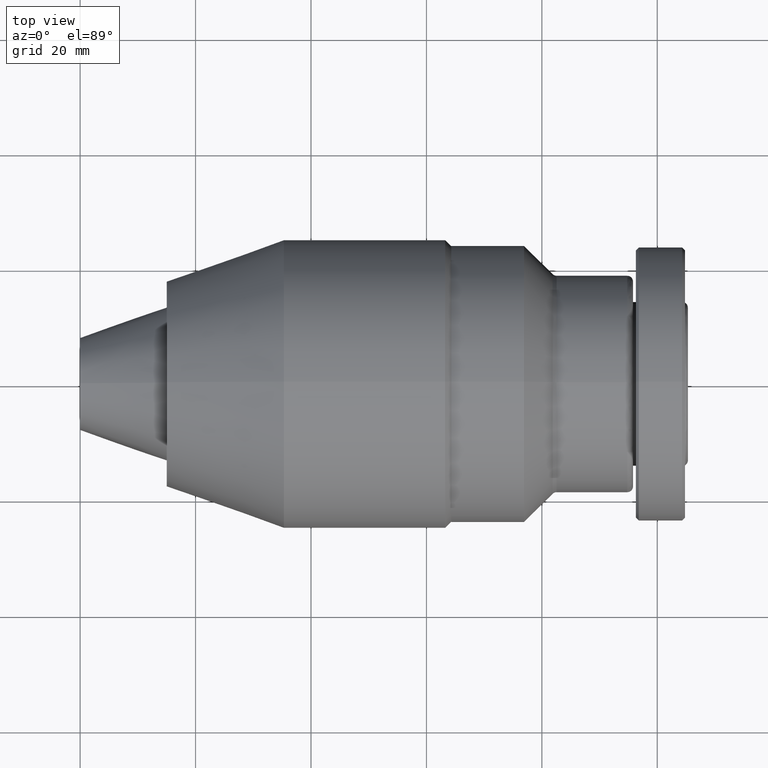
[diagram: clean part render]
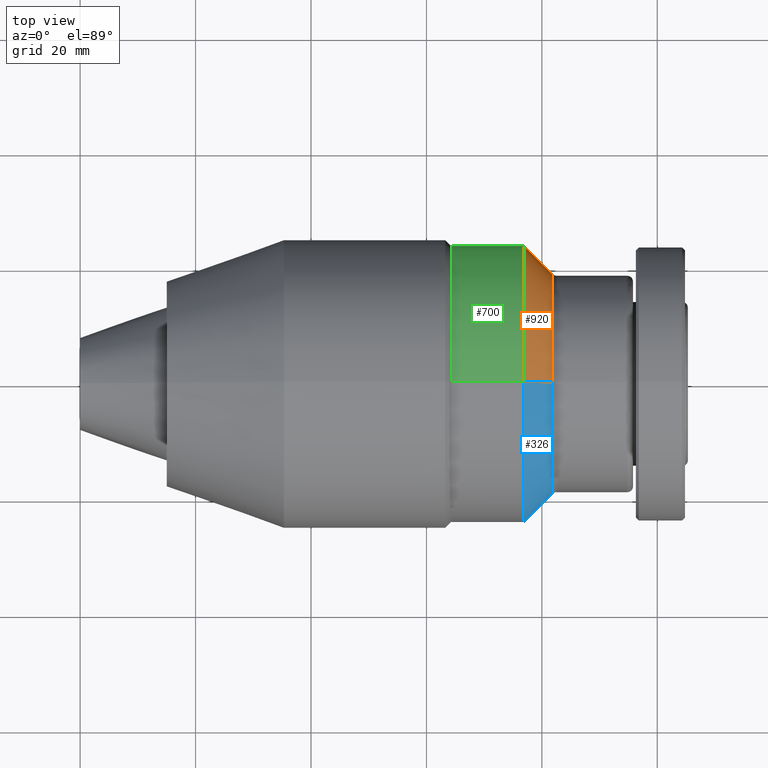
[diagram: same view with three faces highlighted in distinct colors, each labeled with its STEP entity id]
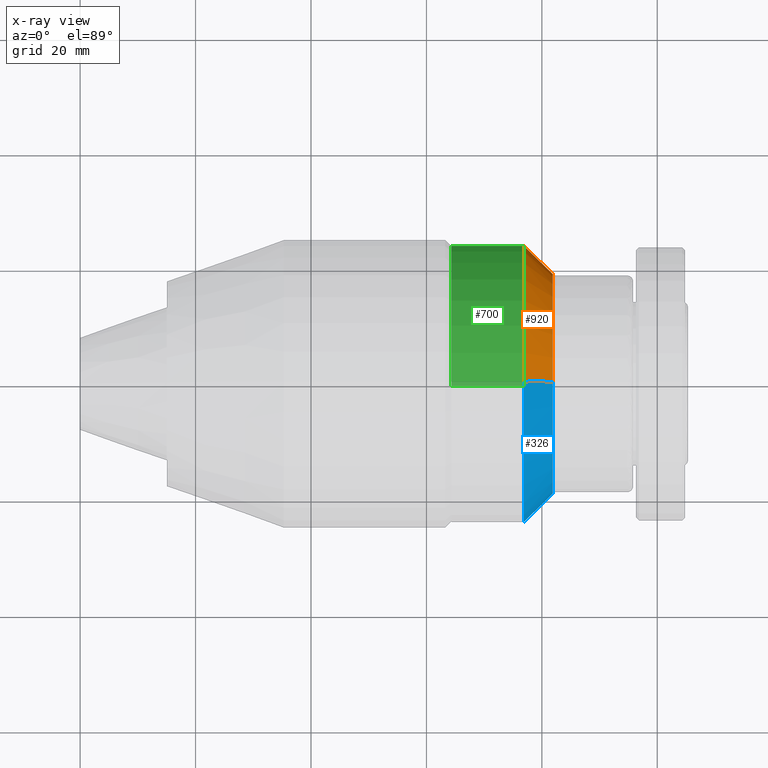
[diagram: x-ray of the same camera — body ghosted, the three highlighted faces saturated]
A machine part, top view with three faces highlighted in distinct colors.
The next image is the same camera in x-ray (body ghosted, the three faces saturated) — at least one of them is partly hidden behind the body in this view.
Their STEP definitions:

[orange] entity #920 — the highlighted conical surface has half-angle 45 deg.
#39 = EDGE_CURVE ( 'NONE', #283, #451, #221, .T. ) ;
#54 = EDGE_LOOP ( 'NONE', ( #1516, #704, #1505, #512, #376 ) ) ;
#78 = AXIS2_PLACEMENT_3D ( 'NONE', #1279, #525, #1413 ) ;
#83 = CIRCLE ( 'NONE', #78, 19.04289321876819900 ) ;
#86 = EDGE_CURVE ( 'NONE', #197, #359, #1600, .T. ) ;
#129 = DIRECTION ( 'NONE',  ( -0.7071067811865479100, 8.659560562354930400E-017, -0.7071067811865472400 ) ) ;
#197 = VERTEX_POINT ( 'NONE', #253 ) ;
#205 = DIRECTION ( 'NONE',  ( 1.734723475976807100E-015, -1.000000000000000000, 0.0000000000000000000 ) ) ;
#211 = CARTESIAN_POINT ( 'NONE',  ( 76.89999999999996300, 0.0000000000000000000, -24.00000000000000000 ) ) ;
#221 = LINE ( 'NONE', #563, #828 ) ;
#253 = CARTESIAN_POINT ( 'NONE',  ( 81.85710678122666200, 0.0000000000000000000, 19.04289321877334000 ) ) ;
#260 = DIRECTION ( 'NONE',  ( -0.7071067811865479100, 0.0000000000000000000, 0.7071067811865472400 ) ) ;
#270 = DIRECTION ( 'NONE',  ( -1.000000000000000000, 0.0000000000000000000, 0.0000000000000000000 ) ) ;
#283 = VERTEX_POINT ( 'NONE', #1360 ) ;
#359 = VERTEX_POINT ( 'NONE', #1383 ) ;
#376 = ORIENTED_EDGE ( 'NONE', *, *, #1349, .T. ) ;
#432 = CIRCLE ( 'NONE', #1636, 19.04289321876819900 ) ;
#449 = VERTEX_POINT ( 'NONE', #705 ) ;
#451 = VERTEX_POINT ( 'NONE', #211 ) ;
#512 = ORIENTED_EDGE ( 'NONE', *, *, #86, .F. ) ;
#525 = DIRECTION ( 'NONE',  ( -1.000000000000000000, -0.0000000000000000000, -3.643823354067219300E-016 ) ) ;
#563 = CARTESIAN_POINT ( 'NONE',  ( 81.85710678100001300, 2.332081822715318700E-015, -19.04289321900000000 ) ) ;
#641 = DIRECTION ( 'NONE',  ( -1.000000000000000000, -0.0000000000000000000, 3.643823354067219300E-016 ) ) ;
#704 = ORIENTED_EDGE ( 'NONE', *, *, #39, .T. ) ;
#705 = CARTESIAN_POINT ( 'NONE',  ( 81.85710678122934800, 19.04289321876681400, -1.952881344010340500E-009 ) ) ;
#768 = CARTESIAN_POINT ( 'NONE',  ( 76.89999999999996300, 0.0000000000000000000, 0.0000000000000000000 ) ) ;
#828 = VECTOR ( 'NONE', #129, 999.9999999999998900 ) ;
#849 = CIRCLE ( 'NONE', #1565, 24.00000000000000000 ) ;
#894 = DIRECTION ( 'NONE',  ( 7.287646708083651800E-016, 0.0000000000000000000, 1.000000000000000000 ) ) ;
#895 = VECTOR ( 'NONE', #260, 999.9999999999998900 ) ;
#920 = ADVANCED_FACE ( 'NONE', ( #1174 ), #1315, .T. ) ;
#1107 = DIRECTION ( 'NONE',  ( 0.0000000000000000000, 0.0000000000000000000, 1.000000000000000000 ) ) ;
#1174 = FACE_OUTER_BOUND ( 'NONE', #54, .T. ) ;
#1228 = CARTESIAN_POINT ( 'NONE',  ( 81.85710678100001300, 0.0000000000000000000, 19.04289321900000000 ) ) ;
#1243 = AXIS2_PLACEMENT_3D ( 'NONE', #1632, #270, #1107 ) ;
#1279 = CARTESIAN_POINT ( 'NONE',  ( 81.85710678122667600, 0.0000000000000000000, 0.0000000000000000000 ) ) ;
#1315 = CONICAL_SURFACE ( 'NONE', #1243, 19.04289321900000000, 0.7853981633974479500 ) ;
#1349 = EDGE_CURVE ( 'NONE', #197, #449, #83, .T. ) ;
#1360 = CARTESIAN_POINT ( 'NONE',  ( 81.85710678122666200, 2.332081822687561000E-015, -19.04289321877334000 ) ) ;
#1361 = DIRECTION ( 'NONE',  ( -1.000000000000000000, 0.0000000000000000000, 0.0000000000000000000 ) ) ;
#1383 = CARTESIAN_POINT ( 'NONE',  ( 76.89999999999996300, 2.939152317953647900E-015, 24.00000000000000000 ) ) ;
#1404 = CARTESIAN_POINT ( 'NONE',  ( 81.85710678122667600, 0.0000000000000000000, 0.0000000000000000000 ) ) ;
#1413 = DIRECTION ( 'NONE',  ( -7.287646708083651800E-016, 0.0000000000000000000, 1.000000000000000000 ) ) ;
#1437 = EDGE_CURVE ( 'NONE', #449, #283, #432, .T. ) ;
#1505 = ORIENTED_EDGE ( 'NONE', *, *, #1633, .F. ) ;
#1516 = ORIENTED_EDGE ( 'NONE', *, *, #1437, .T. ) ;
#1565 = AXIS2_PLACEMENT_3D ( 'NONE', #768, #1361, #205 ) ;
#1600 = LINE ( 'NONE', #1228, #895 ) ;
#1632 = CARTESIAN_POINT ( 'NONE',  ( 81.85710678100001300, 0.0000000000000000000, 0.0000000000000000000 ) ) ;
#1633 = EDGE_CURVE ( 'NONE', #359, #451, #849, .T. ) ;
#1636 = AXIS2_PLACEMENT_3D ( 'NONE', #1404, #641, #894 ) ;

[blue] entity #326 — the highlighted conical surface has half-angle 45 deg.
#39 = EDGE_CURVE ( 'NONE', #283, #451, #221, .T. ) ;
#73 = DIRECTION ( 'NONE',  ( 7.287646708083651800E-016, 0.0000000000000000000, 1.000000000000000000 ) ) ;
#86 = EDGE_CURVE ( 'NONE', #197, #359, #1600, .T. ) ;
#121 = ORIENTED_EDGE ( 'NONE', *, *, #39, .F. ) ;
#128 = CONICAL_SURFACE ( 'NONE', #646, 19.04289321900000000, 0.7853981633974479500 ) ;
#129 = DIRECTION ( 'NONE',  ( -0.7071067811865479100, 8.659560562354930400E-017, -0.7071067811865472400 ) ) ;
#135 = AXIS2_PLACEMENT_3D ( 'NONE', #582, #1474, #708 ) ;
#171 = CARTESIAN_POINT ( 'NONE',  ( 81.85710678122667600, 0.0000000000000000000, 0.0000000000000000000 ) ) ;
#197 = VERTEX_POINT ( 'NONE', #253 ) ;
#211 = CARTESIAN_POINT ( 'NONE',  ( 76.89999999999996300, 0.0000000000000000000, -24.00000000000000000 ) ) ;
#221 = LINE ( 'NONE', #563, #828 ) ;
#253 = CARTESIAN_POINT ( 'NONE',  ( 81.85710678122666200, 0.0000000000000000000, 19.04289321877334000 ) ) ;
#260 = DIRECTION ( 'NONE',  ( -0.7071067811865479100, 0.0000000000000000000, 0.7071067811865472400 ) ) ;
#283 = VERTEX_POINT ( 'NONE', #1360 ) ;
#298 = DIRECTION ( 'NONE',  ( -7.287646708083651800E-016, 0.0000000000000000000, 1.000000000000000000 ) ) ;
#299 = CIRCLE ( 'NONE', #1367, 19.04289321876819900 ) ;
#326 = ADVANCED_FACE ( 'NONE', ( #559 ), #128, .T. ) ;
#359 = VERTEX_POINT ( 'NONE', #1383 ) ;
#372 = DIRECTION ( 'NONE',  ( -1.000000000000000000, 0.0000000000000000000, 0.0000000000000000000 ) ) ;
#441 = ORIENTED_EDGE ( 'NONE', *, *, #1339, .T. ) ;
#451 = VERTEX_POINT ( 'NONE', #211 ) ;
#559 = FACE_OUTER_BOUND ( 'NONE', #1095, .T. ) ;
#563 = CARTESIAN_POINT ( 'NONE',  ( 81.85710678100001300, 2.332081822715318700E-015, -19.04289321900000000 ) ) ;
#582 = CARTESIAN_POINT ( 'NONE',  ( 76.89999999999996300, 0.0000000000000000000, 0.0000000000000000000 ) ) ;
#607 = CARTESIAN_POINT ( 'NONE',  ( 81.85710678100001300, 0.0000000000000000000, 0.0000000000000000000 ) ) ;
#634 = ORIENTED_EDGE ( 'NONE', *, *, #1150, .F. ) ;
#646 = AXIS2_PLACEMENT_3D ( 'NONE', #607, #372, #1209 ) ;
#708 = DIRECTION ( 'NONE',  ( 1.734723475976807100E-015, -1.000000000000000000, 0.0000000000000000000 ) ) ;
#803 = DIRECTION ( 'NONE',  ( -1.000000000000000000, -0.0000000000000000000, 3.643823354067219300E-016 ) ) ;
#807 = VERTEX_POINT ( 'NONE', #1503 ) ;
#828 = VECTOR ( 'NONE', #129, 999.9999999999998900 ) ;
#834 = CIRCLE ( 'NONE', #1259, 19.04289321876819900 ) ;
#862 = ORIENTED_EDGE ( 'NONE', *, *, #86, .T. ) ;
#895 = VECTOR ( 'NONE', #260, 999.9999999999998900 ) ;
#912 = ORIENTED_EDGE ( 'NONE', *, *, #1045, .T. ) ;
#958 = CARTESIAN_POINT ( 'NONE',  ( 81.85710678122667600, 0.0000000000000000000, 0.0000000000000000000 ) ) ;
#1045 = EDGE_CURVE ( 'NONE', #283, #807, #834, .T. ) ;
#1046 = DIRECTION ( 'NONE',  ( -1.000000000000000000, -0.0000000000000000000, -3.643823354067219300E-016 ) ) ;
#1095 = EDGE_LOOP ( 'NONE', ( #121, #912, #441, #862, #634 ) ) ;
#1150 = EDGE_CURVE ( 'NONE', #451, #359, #1251, .T. ) ;
#1209 = DIRECTION ( 'NONE',  ( 0.0000000000000000000, 0.0000000000000000000, 1.000000000000000000 ) ) ;
#1228 = CARTESIAN_POINT ( 'NONE',  ( 81.85710678100001300, 0.0000000000000000000, 19.04289321900000000 ) ) ;
#1251 = CIRCLE ( 'NONE', #135, 24.00000000000000000 ) ;
#1259 = AXIS2_PLACEMENT_3D ( 'NONE', #958, #803, #73 ) ;
#1339 = EDGE_CURVE ( 'NONE', #807, #197, #299, .T. ) ;
#1360 = CARTESIAN_POINT ( 'NONE',  ( 81.85710678122666200, 2.332081822687561000E-015, -19.04289321877334000 ) ) ;
#1367 = AXIS2_PLACEMENT_3D ( 'NONE', #171, #1046, #298 ) ;
#1383 = CARTESIAN_POINT ( 'NONE',  ( 76.89999999999996300, 2.939152317953647900E-015, 24.00000000000000000 ) ) ;
#1474 = DIRECTION ( 'NONE',  ( -1.000000000000000000, 0.0000000000000000000, 0.0000000000000000000 ) ) ;
#1503 = CARTESIAN_POINT ( 'NONE',  ( 81.85710678117136800, -19.04289321882480500, -8.549652389574636300E-010 ) ) ;
#1600 = LINE ( 'NONE', #1228, #895 ) ;

[green] entity #700 — the highlighted cylindrical surface (partial cylindrical patch) has radius 24 mm, axis along (1, 0, -0).
#159 = ORIENTED_EDGE ( 'NONE', *, *, #1582, .F. ) ;
#201 = VERTEX_POINT ( 'NONE', #859 ) ;
#205 = DIRECTION ( 'NONE',  ( 1.734723475976807100E-015, -1.000000000000000000, 0.0000000000000000000 ) ) ;
#211 = CARTESIAN_POINT ( 'NONE',  ( 76.89999999999996300, 0.0000000000000000000, -24.00000000000000000 ) ) ;
#269 = CYLINDRICAL_SURFACE ( 'NONE', #1024, 24.00000000000000000 ) ;
#278 = ORIENTED_EDGE ( 'NONE', *, *, #664, .T. ) ;
#294 = DIRECTION ( 'NONE',  ( 0.0000000000000000000, 0.0000000000000000000, -1.000000000000000000 ) ) ;
#357 = EDGE_LOOP ( 'NONE', ( #711, #278, #805, #159 ) ) ;
#359 = VERTEX_POINT ( 'NONE', #1383 ) ;
#385 = AXIS2_PLACEMENT_3D ( 'NONE', #1211, #824, #1085 ) ;
#451 = VERTEX_POINT ( 'NONE', #211 ) ;
#593 = LINE ( 'NONE', #602, #927 ) ;
#602 = CARTESIAN_POINT ( 'NONE',  ( 64.29999999999999700, 0.0000000000000000000, -24.00000000000000000 ) ) ;
#664 = EDGE_CURVE ( 'NONE', #676, #359, #1628, .T. ) ;
#676 = VERTEX_POINT ( 'NONE', #1170 ) ;
#700 = ADVANCED_FACE ( 'NONE', ( #1227 ), #269, .T. ) ;
#711 = ORIENTED_EDGE ( 'NONE', *, *, #1120, .F. ) ;
#768 = CARTESIAN_POINT ( 'NONE',  ( 76.89999999999996300, 0.0000000000000000000, 0.0000000000000000000 ) ) ;
#789 = DIRECTION ( 'NONE',  ( 1.000000000000000000, 0.0000000000000000000, -0.0000000000000000000 ) ) ;
#805 = ORIENTED_EDGE ( 'NONE', *, *, #1633, .T. ) ;
#824 = DIRECTION ( 'NONE',  ( -1.000000000000000000, -0.0000000000000000000, 0.0000000000000000000 ) ) ;
#849 = CIRCLE ( 'NONE', #1565, 24.00000000000000000 ) ;
#859 = CARTESIAN_POINT ( 'NONE',  ( 64.29999999999999700, 0.0000000000000000000, -24.00000000000000000 ) ) ;
#927 = VECTOR ( 'NONE', #1009, 1000.000000000000000 ) ;
#929 = CIRCLE ( 'NONE', #385, 24.00000000000000000 ) ;
#1009 = DIRECTION ( 'NONE',  ( 1.000000000000000000, 0.0000000000000000000, -0.0000000000000000000 ) ) ;
#1024 = AXIS2_PLACEMENT_3D ( 'NONE', #1164, #1286, #294 ) ;
#1079 = VECTOR ( 'NONE', #789, 1000.000000000000000 ) ;
#1085 = DIRECTION ( 'NONE',  ( 0.0000000000000000000, 0.0000000000000000000, -1.000000000000000000 ) ) ;
#1120 = EDGE_CURVE ( 'NONE', #676, #201, #929, .T. ) ;
#1164 = CARTESIAN_POINT ( 'NONE',  ( 64.29999999999999700, 0.0000000000000000000, 0.0000000000000000000 ) ) ;
#1165 = CARTESIAN_POINT ( 'NONE',  ( 64.29999999999999700, 2.939152317953647900E-015, 24.00000000000000000 ) ) ;
#1170 = CARTESIAN_POINT ( 'NONE',  ( 64.29999999999999700, 2.939152317953647900E-015, 24.00000000000000000 ) ) ;
#1211 = CARTESIAN_POINT ( 'NONE',  ( 64.29999999999999700, 0.0000000000000000000, 0.0000000000000000000 ) ) ;
#1227 = FACE_OUTER_BOUND ( 'NONE', #357, .T. ) ;
#1286 = DIRECTION ( 'NONE',  ( 1.000000000000000000, 0.0000000000000000000, -0.0000000000000000000 ) ) ;
#1361 = DIRECTION ( 'NONE',  ( -1.000000000000000000, 0.0000000000000000000, 0.0000000000000000000 ) ) ;
#1383 = CARTESIAN_POINT ( 'NONE',  ( 76.89999999999996300, 2.939152317953647900E-015, 24.00000000000000000 ) ) ;
#1565 = AXIS2_PLACEMENT_3D ( 'NONE', #768, #1361, #205 ) ;
#1582 = EDGE_CURVE ( 'NONE', #201, #451, #593, .T. ) ;
#1628 = LINE ( 'NONE', #1165, #1079 ) ;
#1633 = EDGE_CURVE ( 'NONE', #359, #451, #849, .T. ) ;